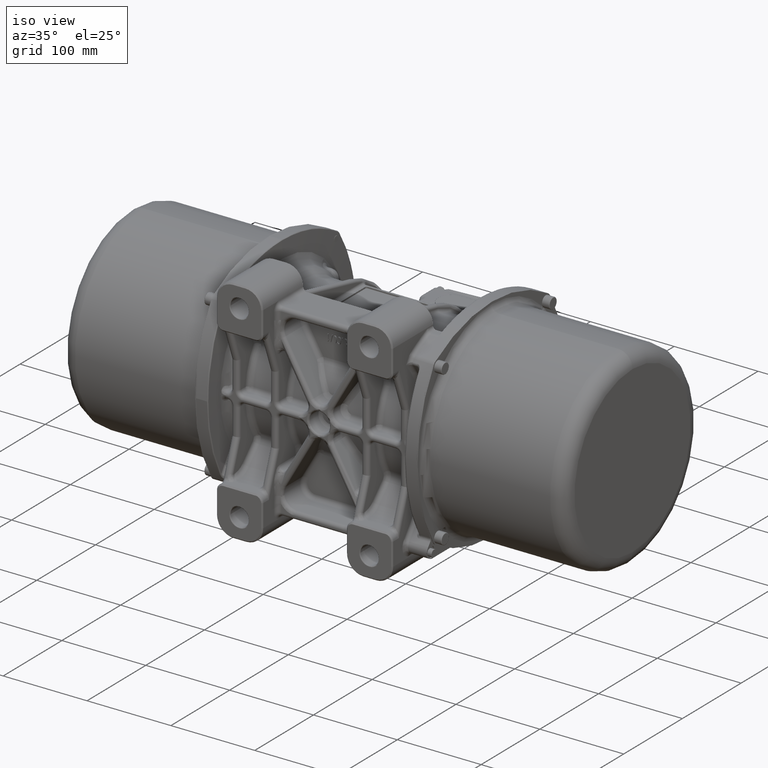
[diagram: clean part render]
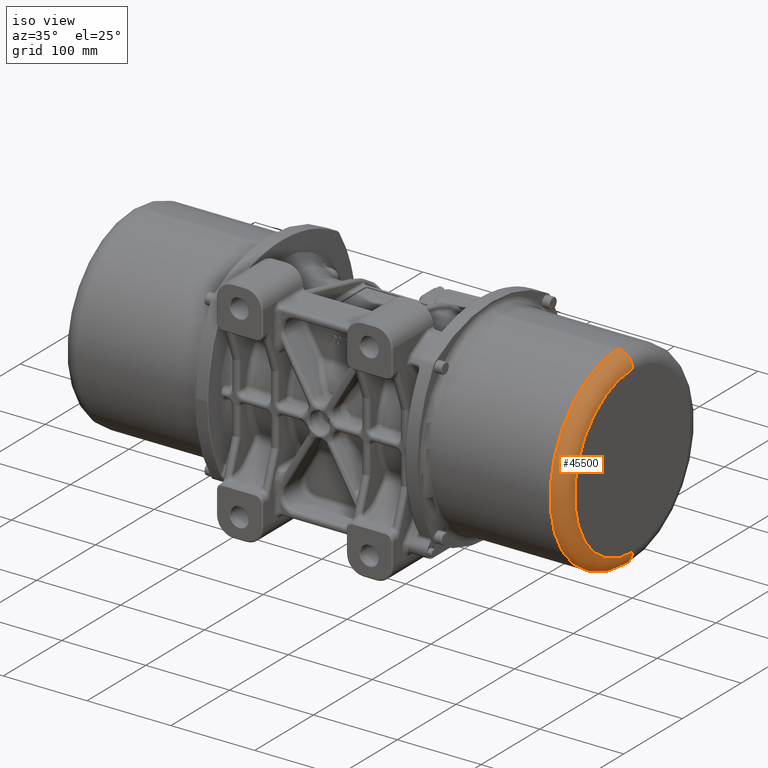
[diagram: same view with one face highlighted and labeled with its STEP entity id]
A machine part, iso view. The second image highlights one B-rep face of the part: STEP entity #45500.
In plain terms, the highlighted toroidal blend (fillet) surface has major radius 98.75 mm and minor (blend) radius 17.2 mm.
Its self-contained STEP definition (entity closure, byte-faithful):
#430 = AXIS2_PLACEMENT_3D ( 'NONE', #24198, #93320, #1864 ) ;
#1286 = DIRECTION ( 'NONE',  ( 0.0000000000000000000, 1.000000000000000000, 1.224646799147353200E-016 ) ) ;
#1864 = DIRECTION ( 'NONE',  ( 0.0000000000000000000, 0.0000000000000000000, 1.000000000000000000 ) ) ;
#4127 = DIRECTION ( 'NONE',  ( 0.0000000000000000000, 0.0000000000000000000, 1.000000000000000000 ) ) ;
#9462 = AXIS2_PLACEMENT_3D ( 'NONE', #23633, #1286, #57925 ) ;
#10077 = CIRCLE ( 'NONE', #26479, 115.9500000000000000 ) ;
#10615 = DIRECTION ( 'NONE',  ( 0.0000000000000000000, 0.0000000000000000000, 1.000000000000000000 ) ) ;
#13874 = EDGE_CURVE ( 'NONE', #32974, #37045, #101025, .T. ) ;
#14320 = FACE_OUTER_BOUND ( 'NONE', #18536, .T. ) ;
#15735 = ORIENTED_EDGE ( 'NONE', *, *, #138994, .T. ) ;
#18536 = EDGE_LOOP ( 'NONE', ( #65038, #15735, #144754, #102512 ) ) ;
#23633 = CARTESIAN_POINT ( 'NONE',  ( 283.3000000000000100, 1.209338714158011300E-014, -98.75000000000000000 ) ) ;
#24198 = CARTESIAN_POINT ( 'NONE',  ( 300.5000000000000000, 0.0000000000000000000, 0.0000000000000000000 ) ) ;
#26479 = AXIS2_PLACEMENT_3D ( 'NONE', #101103, #136383, #10615 ) ;
#31114 = AXIS2_PLACEMENT_3D ( 'NONE', #127598, #49455, #94273 ) ;
#32974 = VERTEX_POINT ( 'NONE', #47263 ) ;
#35561 = CARTESIAN_POINT ( 'NONE',  ( 283.3000000000000100, 0.0000000000000000000, 115.9500000000000000 ) ) ;
#37045 = VERTEX_POINT ( 'NONE', #35561 ) ;
#38675 = VERTEX_POINT ( 'NONE', #82396 ) ;
#45500 = ADVANCED_FACE ( 'NONE', ( #14320 ), #48093, .T. ) ;
#47263 = CARTESIAN_POINT ( 'NONE',  ( 300.5000000000000000, 0.0000000000000000000, 98.75000000000000000 ) ) ;
#48093 = TOROIDAL_SURFACE ( 'NONE', #119198, 98.75000000000000000, 17.19999999999999900 ) ;
#49455 = DIRECTION ( 'NONE',  ( 0.0000000000000000000, -1.000000000000000000, 0.0000000000000000000 ) ) ;
#57558 = CIRCLE ( 'NONE', #9462, 17.19999999999999200 ) ;
#57925 = DIRECTION ( 'NONE',  ( 0.0000000000000000000, -1.224646799147353900E-016, 1.000000000000000000 ) ) ;
#58013 = CARTESIAN_POINT ( 'NONE',  ( 283.3000000000000100, 1.419977963611356200E-014, -115.9500000000000000 ) ) ;
#65038 = ORIENTED_EDGE ( 'NONE', *, *, #84799, .F. ) ;
#65356 = CIRCLE ( 'NONE', #430, 98.75000000000000000 ) ;
#82396 = CARTESIAN_POINT ( 'NONE',  ( 300.5000000000000000, 1.314658338884683800E-014, -98.75000000000000000 ) ) ;
#84799 = EDGE_CURVE ( 'NONE', #38675, #138945, #57558, .T. ) ;
#93320 = DIRECTION ( 'NONE',  ( -1.000000000000000000, 0.0000000000000000000, 0.0000000000000000000 ) ) ;
#94273 = DIRECTION ( 'NONE',  ( 0.0000000000000000000, 0.0000000000000000000, -1.000000000000000000 ) ) ;
#96603 = DIRECTION ( 'NONE',  ( -1.000000000000000000, 0.0000000000000000000, 0.0000000000000000000 ) ) ;
#101025 = CIRCLE ( 'NONE', #31114, 17.19999999999999200 ) ;
#101103 = CARTESIAN_POINT ( 'NONE',  ( 283.3000000000000100, 0.0000000000000000000, 0.0000000000000000000 ) ) ;
#102512 = ORIENTED_EDGE ( 'NONE', *, *, #132507, .F. ) ;
#119198 = AXIS2_PLACEMENT_3D ( 'NONE', #139868, #96603, #4127 ) ;
#127598 = CARTESIAN_POINT ( 'NONE',  ( 283.3000000000000100, 0.0000000000000000000, 98.75000000000000000 ) ) ;
#132507 = EDGE_CURVE ( 'NONE', #138945, #37045, #10077, .T. ) ;
#136383 = DIRECTION ( 'NONE',  ( -1.000000000000000000, 0.0000000000000000000, 0.0000000000000000000 ) ) ;
#138945 = VERTEX_POINT ( 'NONE', #58013 ) ;
#138994 = EDGE_CURVE ( 'NONE', #38675, #32974, #65356, .T. ) ;
#139868 = CARTESIAN_POINT ( 'NONE',  ( 283.3000000000000100, 0.0000000000000000000, 0.0000000000000000000 ) ) ;
#144754 = ORIENTED_EDGE ( 'NONE', *, *, #13874, .T. ) ;